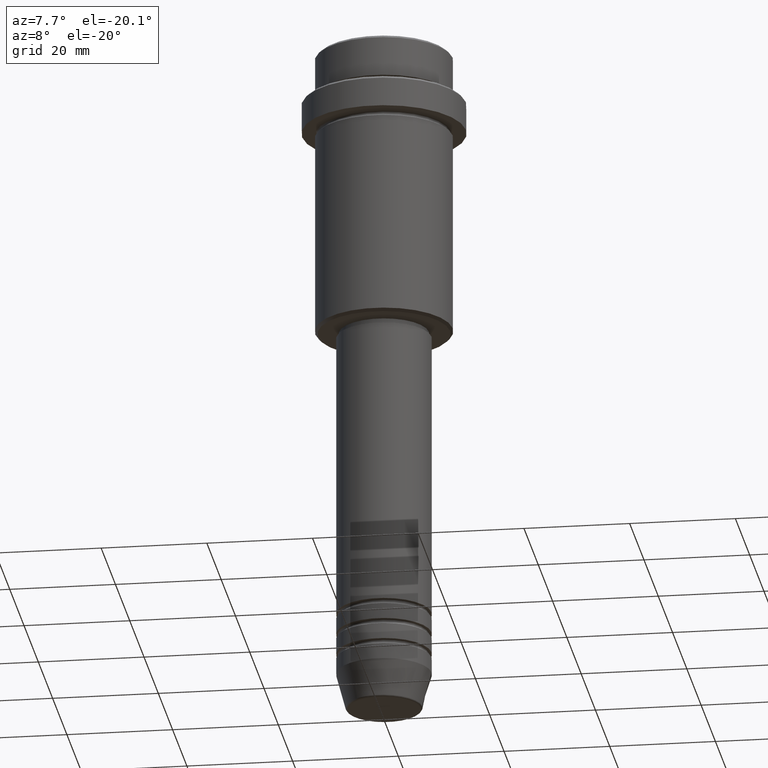
[diagram: clean part render]
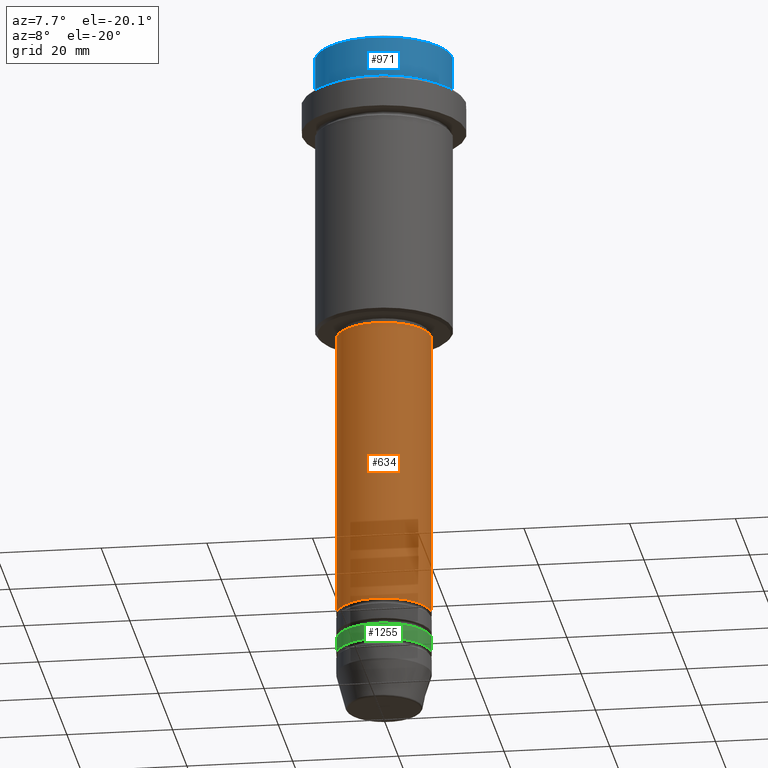
[diagram: same view with three faces highlighted in distinct colors, each labeled with its STEP entity id]
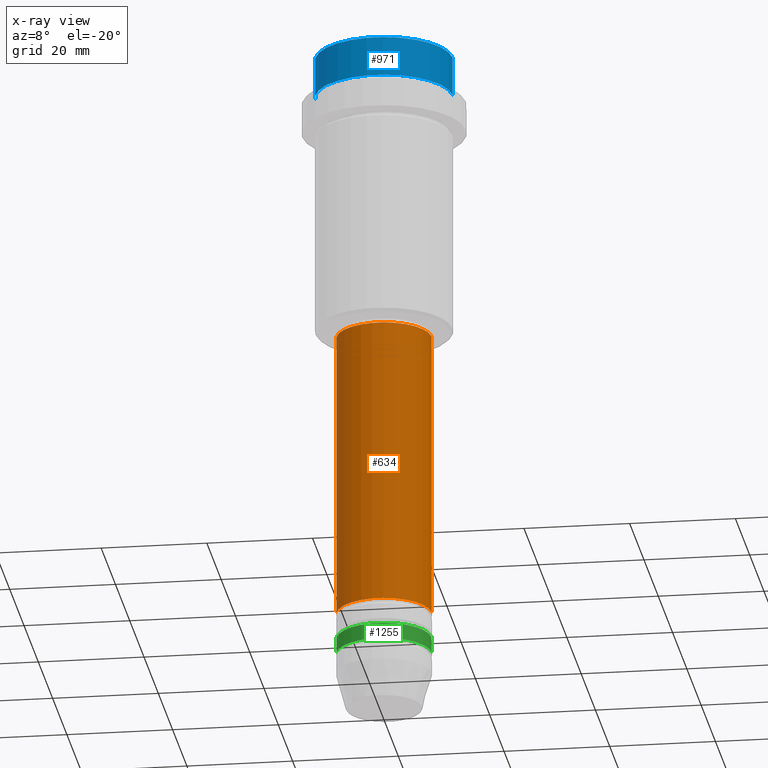
[diagram: x-ray of the same camera — body ghosted, the three highlighted faces saturated]
A machine part, auxiliary view with three faces highlighted in distinct colors.
The next image is the same camera in x-ray (body ghosted, the three faces saturated) — at least one of them is partly hidden behind the body in this view.
Their STEP definitions:

[orange] entity #634 — the highlighted cylindrical surface (partial cylindrical patch) has radius 9 mm, axis along (-0, -0, 1).
#93 = DIRECTION ( 'NONE',  ( 1.000000000000000000, 0.000000000000000000, 0.000000000000000000 ) ) ;
#240 = CARTESIAN_POINT ( 'NONE',  ( -9.000000000000001776, 1.102182119232617911E-15, -55.99999999999997158 ) ) ;
#249 = VERTEX_POINT ( 'NONE', #748 ) ;
#292 = VERTEX_POINT ( 'NONE', #1231 ) ;
#317 = CIRCLE ( 'NONE', #438, 9.000000000000001776 ) ;
#368 = DIRECTION ( 'NONE',  ( 1.000000000000000000, 0.000000000000000000, 0.000000000000000000 ) ) ;
#395 = AXIS2_PLACEMENT_3D ( 'NONE', #679, #907, #368 ) ;
#403 = DIRECTION ( 'NONE',  ( -0.000000000000000000, -0.000000000000000000, 1.000000000000000000 ) ) ;
#415 = VECTOR ( 'NONE', #403, 1000.000000000000000 ) ;
#427 = ORIENTED_EDGE ( 'NONE', *, *, #1100, .F. ) ;
#435 = DIRECTION ( 'NONE',  ( -0.000000000000000000, -0.000000000000000000, 1.000000000000000000 ) ) ;
#438 = AXIS2_PLACEMENT_3D ( 'NONE', #1325, #872, #93 ) ;
#466 = EDGE_CURVE ( 'NONE', #249, #617, #610, .T. ) ;
#477 = EDGE_LOOP ( 'NONE', ( #1216, #594, #929, #427 ) ) ;
#531 = VECTOR ( 'NONE', #1344, 1000.000000000000000 ) ;
#594 = ORIENTED_EDGE ( 'NONE', *, *, #711, .T. ) ;
#610 = LINE ( 'NONE', #1052, #415 ) ;
#617 = VERTEX_POINT ( 'NONE', #240 ) ;
#634 = ADVANCED_FACE ( 'NONE', ( #873 ), #651, .T. ) ;
#636 = CARTESIAN_POINT ( 'NONE',  ( 0.000000000000000000, 0.000000000000000000, 0.000000000000000000 ) ) ;
#651 = CYLINDRICAL_SURFACE ( 'NONE', #989, 9.000000000000001776 ) ;
#679 = CARTESIAN_POINT ( 'NONE',  ( 0.000000000000000000, 0.000000000000000000, -110.9999999999998721 ) ) ;
#711 = EDGE_CURVE ( 'NONE', #249, #1327, #1380, .T. ) ;
#748 = CARTESIAN_POINT ( 'NONE',  ( -9.000000000000000000, 1.102182119232617714E-15, -110.9999999999998721 ) ) ;
#872 = DIRECTION ( 'NONE',  ( -0.000000000000000000, -0.000000000000000000, 1.000000000000000000 ) ) ;
#873 = FACE_OUTER_BOUND ( 'NONE', #477, .T. ) ;
#907 = DIRECTION ( 'NONE',  ( -0.000000000000000000, -0.000000000000000000, 1.000000000000000000 ) ) ;
#929 = ORIENTED_EDGE ( 'NONE', *, *, #1165, .T. ) ;
#989 = AXIS2_PLACEMENT_3D ( 'NONE', #636, #435, #1313 ) ;
#1052 = CARTESIAN_POINT ( 'NONE',  ( -9.000000000000001776, 1.102182119232617911E-15, 0.000000000000000000 ) ) ;
#1100 = EDGE_CURVE ( 'NONE', #617, #292, #317, .T. ) ;
#1165 = EDGE_CURVE ( 'NONE', #1327, #292, #1228, .T. ) ;
#1216 = ORIENTED_EDGE ( 'NONE', *, *, #466, .F. ) ;
#1228 = LINE ( 'NONE', #1234, #531 ) ;
#1231 = CARTESIAN_POINT ( 'NONE',  ( 9.000000000000001776, 0.000000000000000000, -55.99999999999997158 ) ) ;
#1234 = CARTESIAN_POINT ( 'NONE',  ( 9.000000000000001776, 0.000000000000000000, 0.000000000000000000 ) ) ;
#1313 = DIRECTION ( 'NONE',  ( 1.000000000000000000, 0.000000000000000000, 0.000000000000000000 ) ) ;
#1325 = CARTESIAN_POINT ( 'NONE',  ( 0.000000000000000000, 0.000000000000000000, -55.99999999999997158 ) ) ;
#1327 = VERTEX_POINT ( 'NONE', #1386 ) ;
#1344 = DIRECTION ( 'NONE',  ( -0.000000000000000000, -0.000000000000000000, 1.000000000000000000 ) ) ;
#1380 = CIRCLE ( 'NONE', #395, 9.000000000000000000 ) ;
#1386 = CARTESIAN_POINT ( 'NONE',  ( 9.000000000000000000, 0.000000000000000000, -110.9999999999998721 ) ) ;

[blue] entity #971 — the highlighted cylindrical surface (partial cylindrical patch) has radius 13 mm, axis along (-0, -0, 1).
#7 = DIRECTION ( 'NONE',  ( 1.000000000000000000, 0.000000000000000000, 0.000000000000000000 ) ) ;
#11 = AXIS2_PLACEMENT_3D ( 'NONE', #605, #494, #846 ) ;
#23 = VERTEX_POINT ( 'NONE', #660 ) ;
#25 = ORIENTED_EDGE ( 'NONE', *, *, #1086, .F. ) ;
#44 = ORIENTED_EDGE ( 'NONE', *, *, #571, .T. ) ;
#55 = CARTESIAN_POINT ( 'NONE',  ( 12.99999999999999822, 0.000000000000000000, -0.4999999999999900080 ) ) ;
#75 = CARTESIAN_POINT ( 'NONE',  ( 12.99999999999999822, 0.000000000000000000, -7.999999999999998224 ) ) ;
#83 = EDGE_LOOP ( 'NONE', ( #25, #469, #385, #44 ) ) ;
#173 = FACE_OUTER_BOUND ( 'NONE', #83, .T. ) ;
#203 = VERTEX_POINT ( 'NONE', #1098 ) ;
#216 = DIRECTION ( 'NONE',  ( -0.000000000000000000, -0.000000000000000000, 1.000000000000000000 ) ) ;
#218 = DIRECTION ( 'NONE',  ( 1.000000000000000000, 0.000000000000000000, 0.000000000000000000 ) ) ;
#321 = DIRECTION ( 'NONE',  ( 0.000000000000000000, 0.000000000000000000, -1.000000000000000000 ) ) ;
#385 = ORIENTED_EDGE ( 'NONE', *, *, #833, .T. ) ;
#416 = CIRCLE ( 'NONE', #1014, 12.99999999999999822 ) ;
#441 = LINE ( 'NONE', #1416, #1151 ) ;
#469 = ORIENTED_EDGE ( 'NONE', *, *, #652, .T. ) ;
#494 = DIRECTION ( 'NONE',  ( -0.000000000000000000, -0.000000000000000000, 1.000000000000000000 ) ) ;
#541 = CARTESIAN_POINT ( 'NONE',  ( 0.000000000000000000, 0.000000000000000000, -7.999999999999998224 ) ) ;
#571 = EDGE_CURVE ( 'NONE', #1345, #23, #806, .T. ) ;
#605 = CARTESIAN_POINT ( 'NONE',  ( 0.000000000000000000, 0.000000000000000000, 0.000000000000000000 ) ) ;
#652 = EDGE_CURVE ( 'NONE', #203, #1339, #416, .T. ) ;
#660 = CARTESIAN_POINT ( 'NONE',  ( -12.99999999999999822, 1.592040838891558898E-15, -0.4999999999999900080 ) ) ;
#723 = CYLINDRICAL_SURFACE ( 'NONE', #11, 12.99999999999999822 ) ;
#806 = CIRCLE ( 'NONE', #1147, 12.99999999999999822 ) ;
#808 = VECTOR ( 'NONE', #931, 1000.000000000000000 ) ;
#833 = EDGE_CURVE ( 'NONE', #1339, #1345, #1125, .T. ) ;
#846 = DIRECTION ( 'NONE',  ( 1.000000000000000000, 0.000000000000000000, 0.000000000000000000 ) ) ;
#931 = DIRECTION ( 'NONE',  ( -0.000000000000000000, -0.000000000000000000, 1.000000000000000000 ) ) ;
#971 = ADVANCED_FACE ( 'NONE', ( #173 ), #723, .T. ) ;
#983 = DIRECTION ( 'NONE',  ( -0.000000000000000000, -0.000000000000000000, 1.000000000000000000 ) ) ;
#1014 = AXIS2_PLACEMENT_3D ( 'NONE', #541, #983, #7 ) ;
#1055 = CARTESIAN_POINT ( 'NONE',  ( 12.99999999999999822, 0.000000000000000000, 0.000000000000000000 ) ) ;
#1086 = EDGE_CURVE ( 'NONE', #203, #23, #441, .T. ) ;
#1098 = CARTESIAN_POINT ( 'NONE',  ( -12.99999999999999822, 1.592040838891558898E-15, -7.999999999999998224 ) ) ;
#1125 = LINE ( 'NONE', #1055, #808 ) ;
#1147 = AXIS2_PLACEMENT_3D ( 'NONE', #1302, #321, #218 ) ;
#1151 = VECTOR ( 'NONE', #216, 1000.000000000000000 ) ;
#1302 = CARTESIAN_POINT ( 'NONE',  ( 0.000000000000000000, 0.000000000000000000, -0.4999999999999900080 ) ) ;
#1339 = VERTEX_POINT ( 'NONE', #75 ) ;
#1345 = VERTEX_POINT ( 'NONE', #55 ) ;
#1416 = CARTESIAN_POINT ( 'NONE',  ( -12.99999999999999822, 1.592040838891558898E-15, 0.000000000000000000 ) ) ;

[green] entity #1255 — the highlighted cylindrical surface (partial cylindrical patch) has radius 9 mm, axis along (-0, -0, 1).
#12 = AXIS2_PLACEMENT_3D ( 'NONE', #18, #681, #128 ) ;
#18 = CARTESIAN_POINT ( 'NONE',  ( 0.000000000000000000, 0.000000000000000000, 0.000000000000000000 ) ) ;
#22 = CYLINDRICAL_SURFACE ( 'NONE', #12, 9.000000000000000000 ) ;
#91 = ORIENTED_EDGE ( 'NONE', *, *, #482, .F. ) ;
#97 = EDGE_CURVE ( 'NONE', #1287, #672, #188, .T. ) ;
#102 = CIRCLE ( 'NONE', #597, 9.000000000000000000 ) ;
#109 = EDGE_CURVE ( 'NONE', #171, #1287, #102, .T. ) ;
#120 = ORIENTED_EDGE ( 'NONE', *, *, #109, .T. ) ;
#121 = CARTESIAN_POINT ( 'NONE',  ( 9.000000000000000000, 0.000000000000000000, -115.9999999999998863 ) ) ;
#125 = AXIS2_PLACEMENT_3D ( 'NONE', #847, #315, #176 ) ;
#128 = DIRECTION ( 'NONE',  ( 1.000000000000000000, 0.000000000000000000, 0.000000000000000000 ) ) ;
#171 = VERTEX_POINT ( 'NONE', #1194 ) ;
#176 = DIRECTION ( 'NONE',  ( 1.000000000000000000, 0.000000000000000000, 0.000000000000000000 ) ) ;
#188 = LINE ( 'NONE', #800, #1170 ) ;
#193 = ORIENTED_EDGE ( 'NONE', *, *, #97, .T. ) ;
#276 = CARTESIAN_POINT ( 'NONE',  ( 0.000000000000000000, 0.000000000000000000, -118.9999999999998579 ) ) ;
#315 = DIRECTION ( 'NONE',  ( -0.000000000000000000, -0.000000000000000000, 1.000000000000000000 ) ) ;
#384 = EDGE_CURVE ( 'NONE', #171, #1064, #841, .T. ) ;
#482 = EDGE_CURVE ( 'NONE', #1064, #672, #1195, .T. ) ;
#486 = DIRECTION ( 'NONE',  ( -0.000000000000000000, -0.000000000000000000, 1.000000000000000000 ) ) ;
#492 = DIRECTION ( 'NONE',  ( 1.000000000000000000, 0.000000000000000000, 0.000000000000000000 ) ) ;
#496 = ORIENTED_EDGE ( 'NONE', *, *, #384, .F. ) ;
#597 = AXIS2_PLACEMENT_3D ( 'NONE', #276, #486, #492 ) ;
#671 = CARTESIAN_POINT ( 'NONE',  ( 9.000000000000000000, 0.000000000000000000, -118.9999999999998579 ) ) ;
#672 = VERTEX_POINT ( 'NONE', #121 ) ;
#681 = DIRECTION ( 'NONE',  ( -0.000000000000000000, -0.000000000000000000, 1.000000000000000000 ) ) ;
#800 = CARTESIAN_POINT ( 'NONE',  ( 9.000000000000000000, 0.000000000000000000, 0.000000000000000000 ) ) ;
#841 = LINE ( 'NONE', #1279, #1079 ) ;
#847 = CARTESIAN_POINT ( 'NONE',  ( 0.000000000000000000, 0.000000000000000000, -115.9999999999998863 ) ) ;
#849 = EDGE_LOOP ( 'NONE', ( #496, #120, #193, #91 ) ) ;
#917 = FACE_OUTER_BOUND ( 'NONE', #849, .T. ) ;
#1010 = DIRECTION ( 'NONE',  ( -0.000000000000000000, -0.000000000000000000, 1.000000000000000000 ) ) ;
#1064 = VERTEX_POINT ( 'NONE', #1189 ) ;
#1079 = VECTOR ( 'NONE', #1269, 1000.000000000000000 ) ;
#1170 = VECTOR ( 'NONE', #1010, 1000.000000000000000 ) ;
#1189 = CARTESIAN_POINT ( 'NONE',  ( -9.000000000000000000, 1.102182119232617714E-15, -115.9999999999998863 ) ) ;
#1194 = CARTESIAN_POINT ( 'NONE',  ( -9.000000000000000000, 1.102182119232617714E-15, -118.9999999999998579 ) ) ;
#1195 = CIRCLE ( 'NONE', #125, 9.000000000000000000 ) ;
#1255 = ADVANCED_FACE ( 'NONE', ( #917 ), #22, .T. ) ;
#1269 = DIRECTION ( 'NONE',  ( -0.000000000000000000, -0.000000000000000000, 1.000000000000000000 ) ) ;
#1279 = CARTESIAN_POINT ( 'NONE',  ( -9.000000000000000000, 1.102182119232617714E-15, 0.000000000000000000 ) ) ;
#1287 = VERTEX_POINT ( 'NONE', #671 ) ;